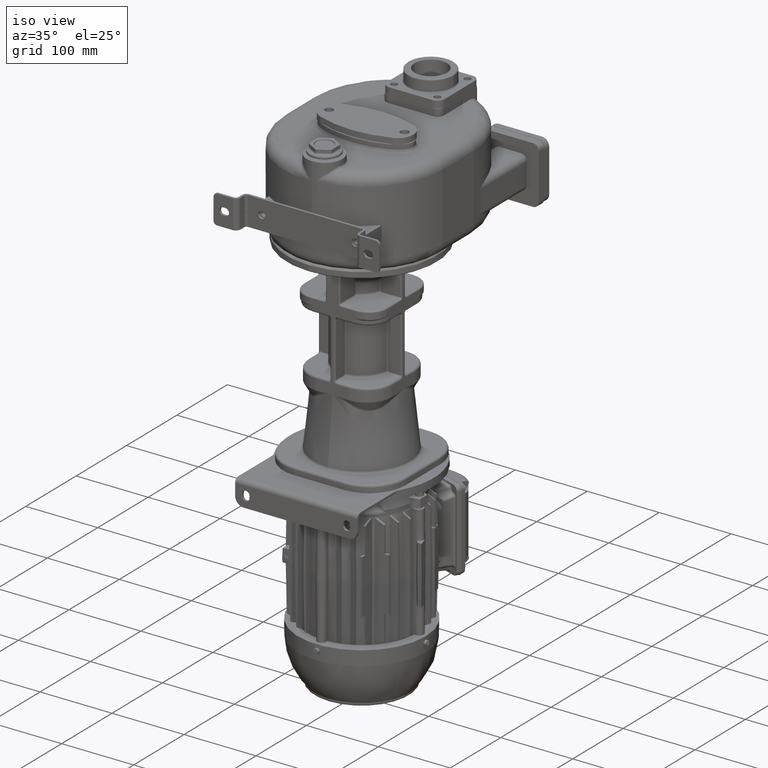
[diagram: clean part render]
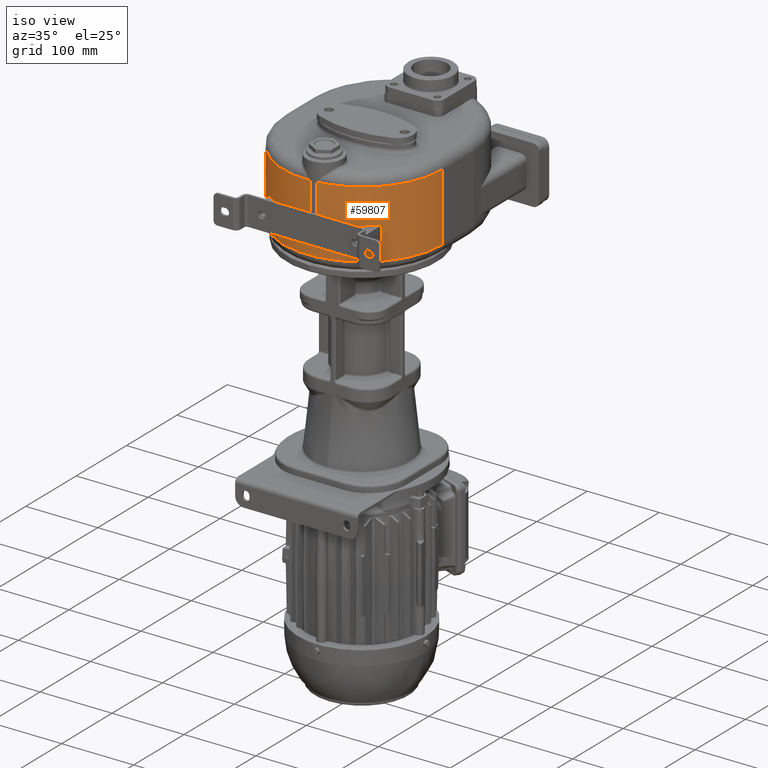
[diagram: tour spotlight — one face highlighted and labeled with its STEP entity id]
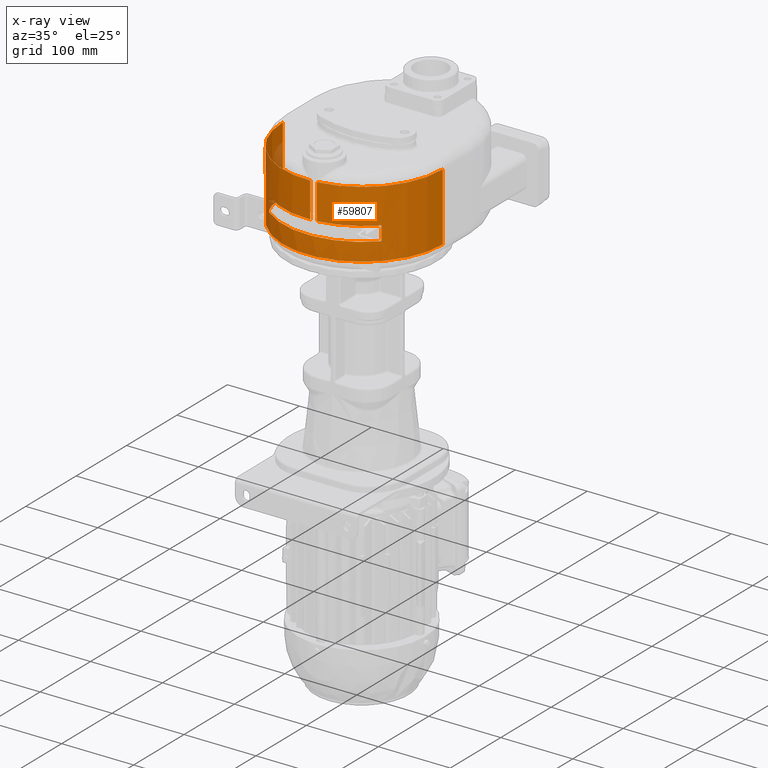
[diagram: x-ray of the same camera — body ghosted, this tour face saturated]
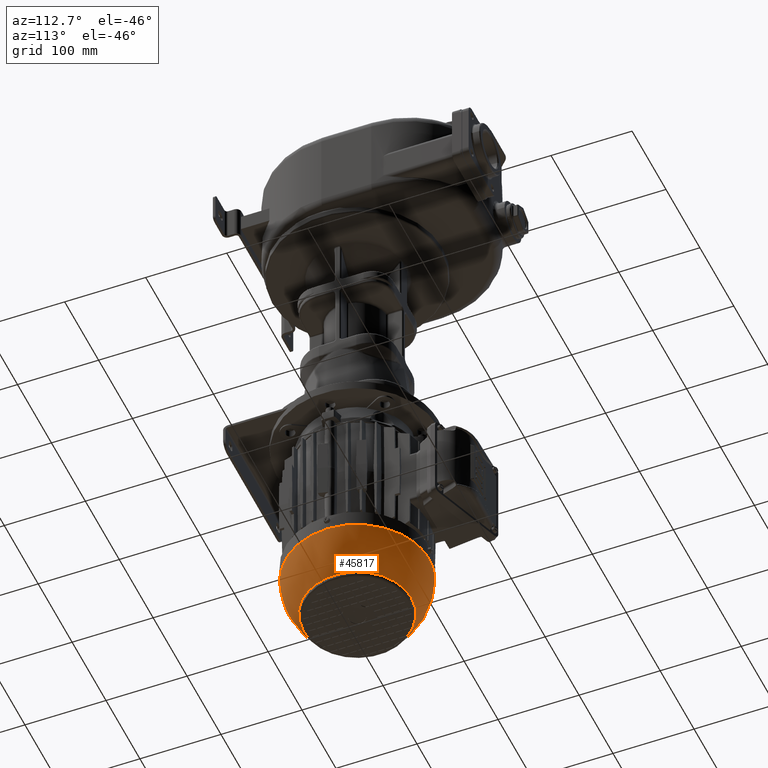
[diagram: tour spotlight — one face highlighted and labeled with its STEP entity id]
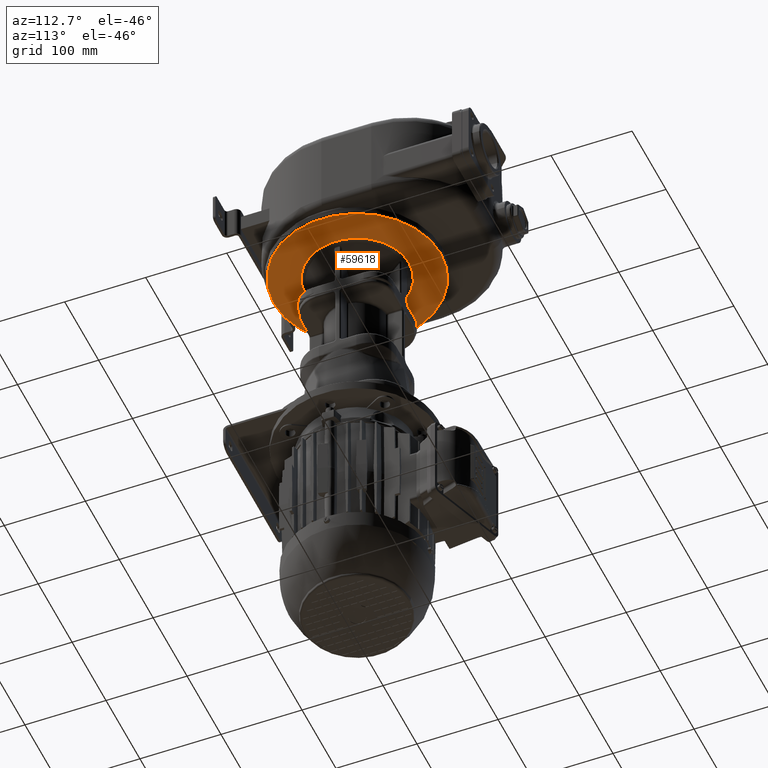
[diagram: tour spotlight — one face highlighted and labeled with its STEP entity id]
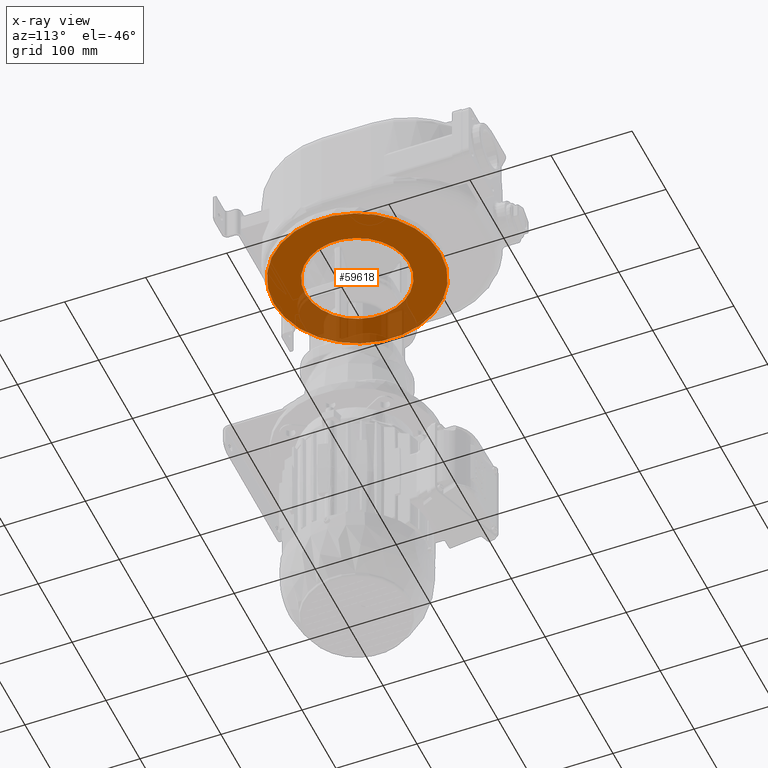
[diagram: x-ray of the same camera — body ghosted, this tour face saturated]
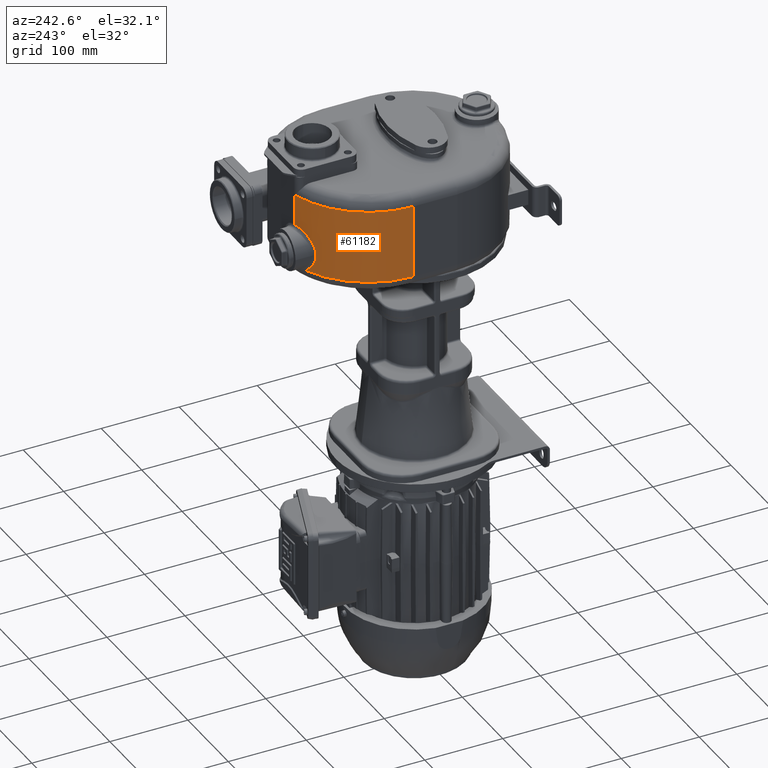
[diagram: tour spotlight — one face highlighted and labeled with its STEP entity id]
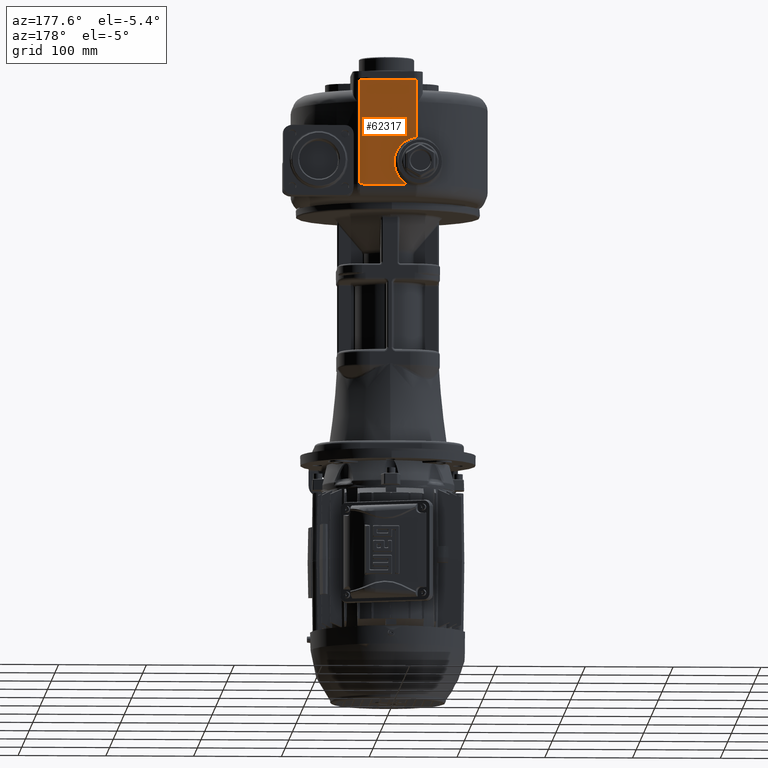
[diagram: tour spotlight — one face highlighted and labeled with its STEP entity id]
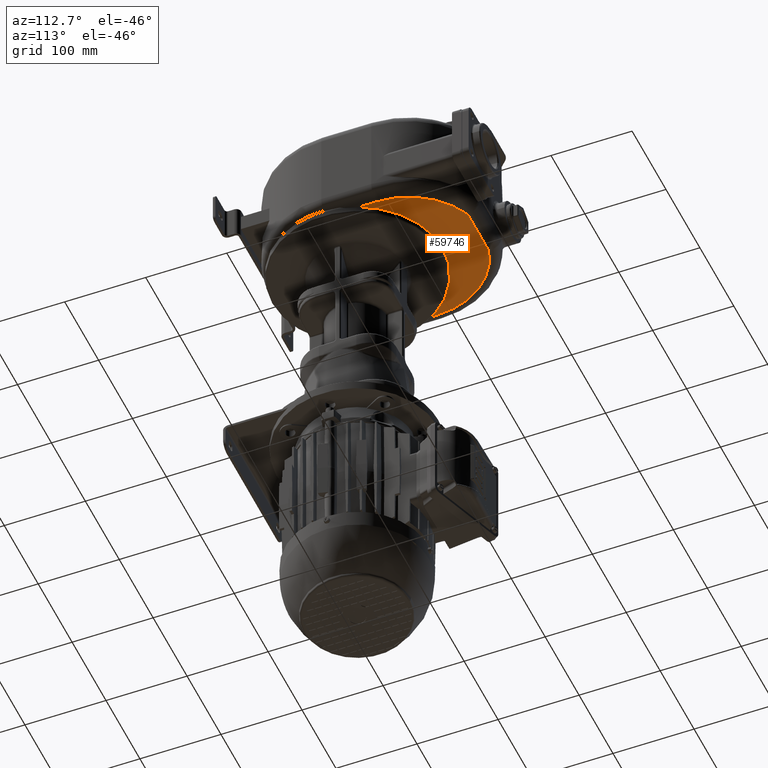
[diagram: tour spotlight — one face highlighted and labeled with its STEP entity id]
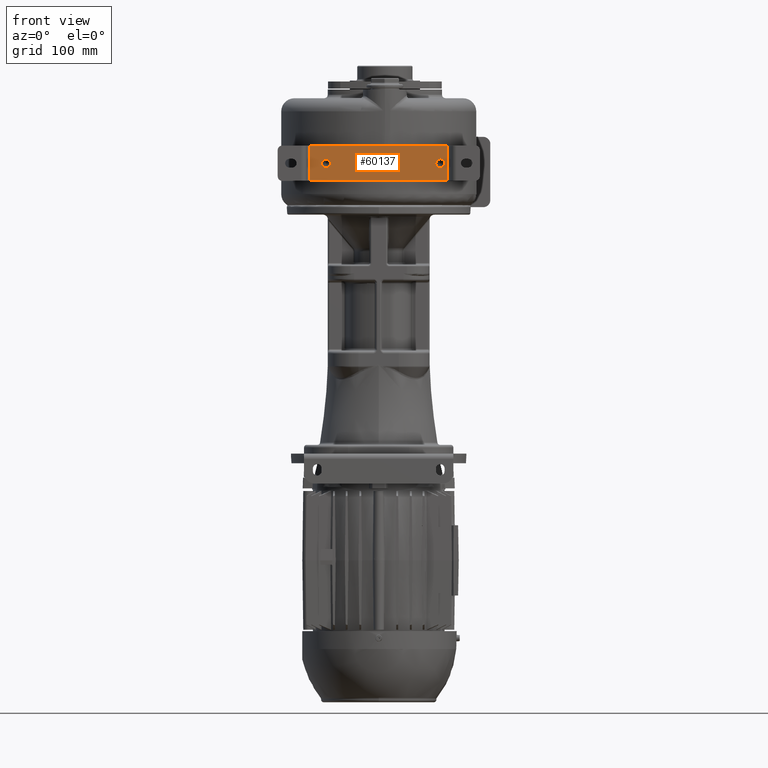
[diagram: tour spotlight — one face highlighted and labeled with its STEP entity id]
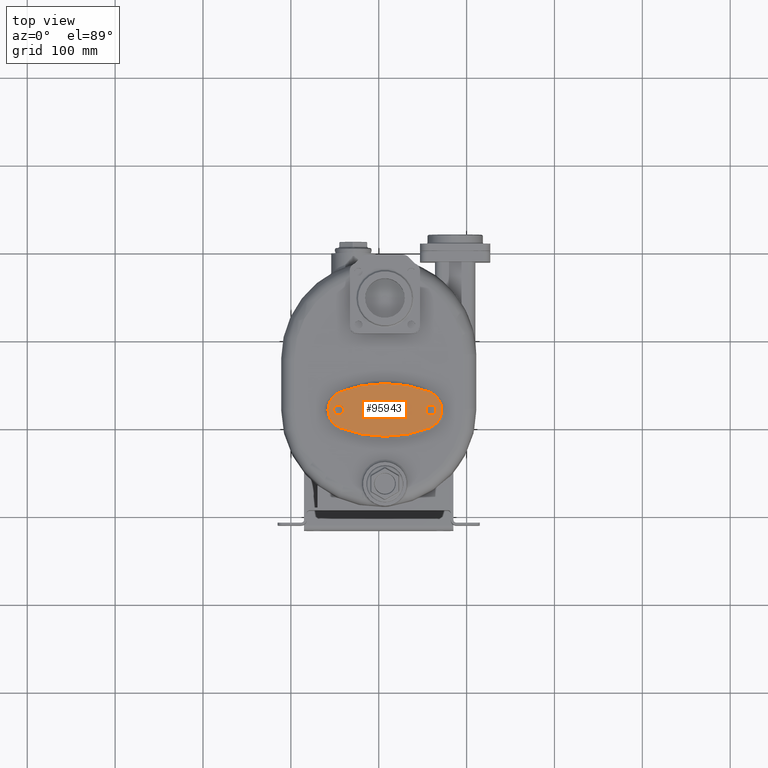
[diagram: tour spotlight — one face highlighted and labeled with its STEP entity id]
A machine part: a face-by-face anatomy tour. The part has 2327 B-rep faces; the first image is the clean iso view, then the 8 largest visible faces are spotlighted one at a time (largest first), each with its STEP entity span.

Face 1 — iso view, entity #59807. An x-ray twin of the same camera follows (body ghosted, this face saturated) — the face is partly hidden behind the body. In plain terms, the highlighted cylindrical surface (partial cylindrical patch) has radius 111 mm, axis along (0, 0, -1).
Definition (entity closure, byte-faithful):
#11781=DIRECTION('',(1.653481886557E-10,-1.355777005402E-9,-1.E0));
#11782=VECTOR('',#11781,4.9E1);
#11783=CARTESIAN_POINT('',(1.343747532038E1,1.816361277381E0,5.9E1));
#11784=LINE('',#11783,#11782);
#11785=CARTESIAN_POINT('',(0.E0,1.12E2,5.9E1));
#11786=DIRECTION('',(0.E0,0.E0,1.E0));
#11787=DIRECTION('',(1.210583362927E-1,-9.926453944960E-1,0.E0));
#11788=AXIS2_PLACEMENT_3D('',#11785,#11786,#11787);
#11790=DIRECTION('',(0.E0,-7.770616301717E-14,1.E0));
#11791=VECTOR('',#11790,9.4E1);
#11792=CARTESIAN_POINT('',(1.11E2,1.12E2,-3.5E1));
#11793=LINE('',#11792,#11791);
#11794=CARTESIAN_POINT('',(0.E0,1.12E2,-3.5E1));
#11795=DIRECTION('',(0.E0,0.E0,-1.E0));
#11796=DIRECTION('',(1.E0,0.E0,0.E0));
#11797=AXIS2_PLACEMENT_3D('',#11794,#11795,#11796);
#11799=CARTESIAN_POINT('',(0.E0,1.12E2,5.9E1));
#11800=DIRECTION('',(0.E0,0.E0,1.E0));
#11801=DIRECTION('',(-1.E0,0.E0,0.E0));
#11802=AXIS2_PLACEMENT_3D('',#11799,#11800,#11801);
#11804=DIRECTION('',(-1.245607865459E-8,3.053099366990E-7,1.E0));
#11805=VECTOR('',#11804,4.899999999683E1);
#11806=CARTESIAN_POINT('',(4.558222950119E0,1.093631366197E0,1.E1));
#11807=LINE('',#11806,#11805);
#11808=CARTESIAN_POINT('',(0.E0,1.12E2,1.E1));
#11809=DIRECTION('',(0.E0,0.E0,-1.E0));
#11810=DIRECTION('',(4.106507162270E-2,-9.991564741784E-1,0.E0));
#11811=AXIS2_PLACEMENT_3D('',#11808,#11809,#11810);
#11813=DIRECTION('',(0.E0,0.E0,-1.E0));
#11814=VECTOR('',#11813,2.E1);
#11815=CARTESIAN_POINT('',(-7.E1,2.585477378287E1,1.E1));
#11816=LINE('',#11815,#11814);
#11817=CARTESIAN_POINT('',(0.E0,1.12E2,-1.E1));
#11818=DIRECTION('',(0.E0,0.E0,-1.E0));
#11819=DIRECTION('',(7.207207207207E-1,-6.932255352508E-1,0.E0));
#11820=AXIS2_PLACEMENT_3D('',#11817,#11818,#11819);
#11822=DIRECTION('',(0.E0,0.E0,-1.E0));
#11823=VECTOR('',#11822,2.E1);
#11824=CARTESIAN_POINT('',(8.E1,3.505196558716E1,1.E1));
#11825=LINE('',#11824,#11823);
#11826=CARTESIAN_POINT('',(0.E0,1.12E2,1.E1));
#11827=DIRECTION('',(0.E0,0.E0,-1.E0));
#11828=DIRECTION('',(7.207207207207E-1,-6.932255352508E-1,0.E0));
#11829=AXIS2_PLACEMENT_3D('',#11826,#11827,#11828);
#12901=CARTESIAN_POINT('',(4.558222339772E0,1.093646326384E0,5.899999999683E1));
#12979=DIRECTION('',(0.E0,1.454344918726E-13,1.E0));
#12980=VECTOR('',#12979,9.4E1);
#12981=CARTESIAN_POINT('',(-1.11E2,1.12E2,-3.5E1));
#12982=LINE('',#12981,#12980);
#15438=CARTESIAN_POINT('',(1.343747532038E1,1.816361277381E0,5.9E1));
#38249=CARTESIAN_POINT('',(8.E1,3.505196558716E1,-1.E1));
#38250=VERTEX_POINT('',#38249);
#38251=CARTESIAN_POINT('',(8.E1,3.505196558716E1,1.E1));
#38252=VERTEX_POINT('',#38251);
#38333=CARTESIAN_POINT('',(-7.E1,2.585477378287E1,1.E1));
#38334=CARTESIAN_POINT('',(-7.E1,2.585477378287E1,-1.E1));
#38335=VERTEX_POINT('',#38333);
#38336=VERTEX_POINT('',#38334);
#38347=CARTESIAN_POINT('',(1.11E2,1.12E2,5.9E1));
#38348=VERTEX_POINT('',#38347);
#38354=CARTESIAN_POINT('',(-1.11E2,1.12E2,5.9E1));
#38356=VERTEX_POINT('',#38354);
#38377=CARTESIAN_POINT('',(1.11E2,1.12E2,-3.5E1));
#38378=VERTEX_POINT('',#38377);
#38379=CARTESIAN_POINT('',(-1.11E2,1.12E2,-3.5E1));
#38380=VERTEX_POINT('',#38379);
#38404=VERTEX_POINT('',#15438);
#38407=VERTEX_POINT('',#12901);
#38431=CARTESIAN_POINT('',(1.343747532849E1,1.816361210948E0,1.E1));
#38432=VERTEX_POINT('',#38431);
#38437=CARTESIAN_POINT('',(4.558222950120E0,1.093631366197E0,1.E1));
#38438=VERTEX_POINT('',#38437);
#59777=CARTESIAN_POINT('',(0.E0,1.12E2,-5.E1));
#59778=DIRECTION('',(0.E0,0.E0,-1.E0));
#59779=DIRECTION('',(-1.E0,0.E0,0.E0));
#59780=AXIS2_PLACEMENT_3D('',#59777,#59778,#59779);
#59781=CYLINDRICAL_SURFACE('',#59780,1.11E2);
#59783=ORIENTED_EDGE('',*,*,#59782,.F.);
#59785=ORIENTED_EDGE('',*,*,#59784,.T.);
#59787=ORIENTED_EDGE('',*,*,#59786,.F.);
#59788=ORIENTED_EDGE('',*,*,#59771,.T.);
#59790=ORIENTED_EDGE('',*,*,#59789,.T.);
#59792=ORIENTED_EDGE('',*,*,#59791,.T.);
#59794=ORIENTED_EDGE('',*,*,#59793,.F.);
#59796=ORIENTED_EDGE('',*,*,#59795,.T.);
#59798=ORIENTED_EDGE('',*,*,#59797,.T.);
#59800=ORIENTED_EDGE('',*,*,#59799,.F.);
#59802=ORIENTED_EDGE('',*,*,#59801,.F.);
#59804=ORIENTED_EDGE('',*,*,#59803,.T.);
#59805=EDGE_LOOP('',(#59783,#59785,#59787,#59788,#59790,#59792,#59794,#59796,
#59798,#59800,#59802,#59804));
#59806=FACE_OUTER_BOUND('',#59805,.F.);
#59807=ADVANCED_FACE('',(#59806),#59781,.T.);
#11789=CIRCLE('',#11788,1.11E2);
#11798=CIRCLE('',#11797,1.11E2);
#11803=CIRCLE('',#11802,1.11E2);
#11812=CIRCLE('',#11811,1.11E2);
#11821=CIRCLE('',#11820,1.11E2);
#11830=CIRCLE('',#11829,1.11E2);
#59771=EDGE_CURVE('',#38378,#38380,#11798,.T.);
#59782=EDGE_CURVE('',#38404,#38432,#11784,.T.);
#59784=EDGE_CURVE('',#38404,#38348,#11789,.T.);
#59786=EDGE_CURVE('',#38378,#38348,#11793,.T.);
#59789=EDGE_CURVE('',#38380,#38356,#12982,.T.);
#59791=EDGE_CURVE('',#38356,#38407,#11803,.T.);
#59793=EDGE_CURVE('',#38438,#38407,#11807,.T.);
#59795=EDGE_CURVE('',#38438,#38335,#11812,.T.);
#59797=EDGE_CURVE('',#38335,#38336,#11816,.T.);
#59799=EDGE_CURVE('',#38250,#38336,#11821,.T.);
#59801=EDGE_CURVE('',#38252,#38250,#11825,.T.);
#59803=EDGE_CURVE('',#38252,#38432,#11830,.T.);

Face 2 — auxiliary view, entity #45817. In plain terms, the highlighted spherical surface has radius 88.2484 mm.
Definition (entity closure, byte-faithful):
#1827=CARTESIAN_POINT('',(-3.084348699154E-14,1.1E2,-5.528100738710E2));
#1828=DIRECTION('',(0.E0,0.E0,1.E0));
#1829=DIRECTION('',(-9.861914828993E-1,-1.656090548758E-1,0.E0));
#1830=AXIS2_PLACEMENT_3D('',#1827,#1828,#1829);
#1832=CARTESIAN_POINT('',(-8.7E1,1.1E2,-5.505E2));
#1833=DIRECTION('',(-1.E0,0.E0,-1.476638648832E-14));
#1834=DIRECTION('',(0.E0,9.877288322428E-1,-1.561785963450E-1));
#1835=AXIS2_PLACEMENT_3D('',#1832,#1833,#1834);
#1837=CARTESIAN_POINT('',(-3.084348699154E-14,1.1E2,-6.081461572087E2));
#1838=DIRECTION('',(0.E0,0.E0,-1.E0));
#1839=DIRECTION('',(0.E0,-1.E0,0.E0));
#1840=AXIS2_PLACEMENT_3D('',#1837,#1838,#1839);
#1842=CARTESIAN_POINT('',(-3.084348699154E-14,1.1E2,-6.081461572087E2));
#1843=DIRECTION('',(0.E0,0.E0,-1.E0));
#1844=DIRECTION('',(0.E0,1.E0,0.E0));
#1845=AXIS2_PLACEMENT_3D('',#1842,#1843,#1844);
#2278=CARTESIAN_POINT('',(-8.7E1,9.539027356854E1,-5.528100738711E2));
#2290=CARTESIAN_POINT('',(-8.7E1,1.246097264315E2,-5.528100738711E2));
#40978=VERTEX_POINT('',#2278);
#41043=VERTEX_POINT('',#2290);
#42678=CARTESIAN_POINT('',(-1.021108169298E-13,1.768184189185E2,
-6.081461572087E2));
#42680=VERTEX_POINT('',#42678);
#42738=CARTESIAN_POINT('',(-1.443271405111E-13,4.318158108155E1,
-6.081461572087E2));
#42739=VERTEX_POINT('',#42738);
#45802=CARTESIAN_POINT('',(-3.084348699154E-14,1.1E2,-5.505E2));
#45803=DIRECTION('',(0.E0,-1.E0,0.E0));
#45804=DIRECTION('',(1.E0,0.E0,1.476638648832E-14));
#45805=AXIS2_PLACEMENT_3D('',#45802,#45803,#45804);
#45806=SPHERICAL_SURFACE('',#45805,8.824840252204E1);
#45808=ORIENTED_EDGE('',*,*,#45807,.T.);
#45810=ORIENTED_EDGE('',*,*,#45809,.T.);
#45811=EDGE_LOOP('',(#45808,#45810));
#45812=FACE_OUTER_BOUND('',#45811,.F.);
#45813=ORIENTED_EDGE('',*,*,#45782,.T.);
#45814=ORIENTED_EDGE('',*,*,#45795,.T.);
#45815=EDGE_LOOP('',(#45813,#45814));
#45816=FACE_BOUND('',#45815,.F.);
#45817=ADVANCED_FACE('',(#45812,#45816),#45806,.T.);
#1831=CIRCLE('',#1830,8.821816199855E1);
#1836=CIRCLE('',#1835,1.479123212216E1);
#1841=CIRCLE('',#1840,6.681841891845E1);
#1846=CIRCLE('',#1845,6.681841891845E1);
#45782=EDGE_CURVE('',#42739,#42680,#1841,.T.);
#45795=EDGE_CURVE('',#42680,#42739,#1846,.T.);
#45807=EDGE_CURVE('',#40978,#41043,#1831,.T.);
#45809=EDGE_CURVE('',#41043,#40978,#1836,.T.);

Face 3 — auxiliary view, entity #59618. An x-ray twin of the same camera follows (body ghosted, this face saturated) — the face is partly hidden behind the body. In plain terms, the highlighted planar face has unit normal (0, 0, -1).
Definition (entity closure, byte-faithful):
#11462=CARTESIAN_POINT('',(0.E0,1.1E2,-5.85E1));
#11463=DIRECTION('',(0.E0,0.E0,1.E0));
#11464=DIRECTION('',(0.E0,1.E0,0.E0));
#11465=AXIS2_PLACEMENT_3D('',#11462,#11463,#11464);
#11467=CARTESIAN_POINT('',(0.E0,1.1E2,-5.85E1));
#11468=DIRECTION('',(0.E0,0.E0,1.E0));
#11469=DIRECTION('',(0.E0,-1.E0,0.E0));
#11470=AXIS2_PLACEMENT_3D('',#11467,#11468,#11469);
#11472=CARTESIAN_POINT('',(0.E0,1.1E2,-5.85E1));
#11473=DIRECTION('',(0.E0,0.E0,-1.E0));
#11474=DIRECTION('',(0.E0,-1.E0,0.E0));
#11475=AXIS2_PLACEMENT_3D('',#11472,#11473,#11474);
#11477=CARTESIAN_POINT('',(0.E0,1.1E2,-5.85E1));
#11478=DIRECTION('',(0.E0,0.E0,-1.E0));
#11479=DIRECTION('',(0.E0,1.E0,0.E0));
#11480=AXIS2_PLACEMENT_3D('',#11477,#11478,#11479);
#38447=CARTESIAN_POINT('',(0.E0,4.598899167936E1,-5.85E1));
#38448=CARTESIAN_POINT('',(0.E0,1.740110083206E2,-5.85E1));
#38449=VERTEX_POINT('',#38447);
#38450=VERTEX_POINT('',#38448);
#38475=CARTESIAN_POINT('',(3.744776952475E-14,2.13E2,-5.85E1));
#38476=CARTESIAN_POINT('',(-5.682942365573E-14,7.E0,-5.85E1));
#38477=VERTEX_POINT('',#38475);
#38478=VERTEX_POINT('',#38476);
#59602=CARTESIAN_POINT('',(0.E0,1.1E2,-5.85E1));
#59603=DIRECTION('',(0.E0,0.E0,-1.E0));
#59604=DIRECTION('',(0.E0,1.E0,0.E0));
#59605=AXIS2_PLACEMENT_3D('',#59602,#59603,#59604);
#59606=PLANE('',#59605);
#59608=ORIENTED_EDGE('',*,*,#59607,.T.);
#59610=ORIENTED_EDGE('',*,*,#59609,.T.);
#59611=EDGE_LOOP('',(#59608,#59610));
#59612=FACE_OUTER_BOUND('',#59611,.F.);
#59614=ORIENTED_EDGE('',*,*,#59613,.T.);
#59615=ORIENTED_EDGE('',*,*,#59592,.T.);
#59616=EDGE_LOOP('',(#59614,#59615));
#59617=FACE_BOUND('',#59616,.F.);
#59618=ADVANCED_FACE('',(#59612,#59617),#59606,.T.);
#11466=CIRCLE('',#11465,1.03E2);
#11471=CIRCLE('',#11470,1.03E2);
#11476=CIRCLE('',#11475,6.401100832064E1);
#11481=CIRCLE('',#11480,6.401100832064E1);
#59592=EDGE_CURVE('',#38450,#38449,#11481,.T.);
#59607=EDGE_CURVE('',#38477,#38478,#11466,.T.);
#59609=EDGE_CURVE('',#38478,#38477,#11471,.T.);
#59613=EDGE_CURVE('',#38449,#38450,#11476,.T.);

Face 4 — auxiliary view, entity #61182. In plain terms, the highlighted cylindrical surface (partial cylindrical patch) has radius 111 mm, axis along (0, 0, -1).
Definition (entity closure, byte-faithful):
#12983=CARTESIAN_POINT('',(-5.598262203680E1,2.649286204479E2,
-1.000000000284E1));
#12984=CARTESIAN_POINT('',(-5.598257417062E1,2.649286647669E2,
-9.713638214482E0));
#12985=CARTESIAN_POINT('',(-5.597408268953E1,2.649335562957E2,
-9.141487370924E0));
#12986=CARTESIAN_POINT('',(-5.593732685356E1,2.649550423786E2,
-8.284988627281E0));
#12987=CARTESIAN_POINT('',(-5.587625271090E1,2.649906489092E2,
-7.430188306869E0));
#12988=CARTESIAN_POINT('',(-5.579092208791E1,2.650403222006E2,
-6.577077696168E0));
#12989=CARTESIAN_POINT('',(-5.568108903097E1,2.651041066739E2,
-5.725685272007E0));
#12990=CARTESIAN_POINT('',(-5.554641010945E1,2.651820918917E2,
-4.876061583062E0));
#12991=CARTESIAN_POINT('',(-5.538682189137E1,2.652741745605E2,
-4.028112592355E0));
#12992=CARTESIAN_POINT('',(-5.520215468499E1,2.653802880721E2,
-3.181941395216E0));
#12993=CARTESIAN_POINT('',(-5.499210328162E1,2.655004161141E2,
-2.337584417320E0));
#12994=CARTESIAN_POINT('',(-5.475640849650E1,2.656344876723E2,
-1.495711142670E0));
#12995=CARTESIAN_POINT('',(-5.449490049273E1,2.657823528743E2,
-6.575120318254E-1));
#12996=CARTESIAN_POINT('',(-5.420746308680E1,2.659438044832E2,
1.758164510485E-1));
#12997=CARTESIAN_POINT('',(-5.389392711569E1,2.661186383736E2,
1.003923659341E0));
#12998=CARTESIAN_POINT('',(-5.355394319492E1,2.663067227143E2,
1.826620260440E0));
#12999=CARTESIAN_POINT('',(-5.318708492140E1,2.665079362791E2,
2.643625309546E0));
#13000=CARTESIAN_POINT('',(-5.279344524677E1,2.667218439738E2,
3.453393776946E0));
#13001=CARTESIAN_POINT('',(-5.237327594971E1,2.669479043984E2,
4.254192848392E0));
#13002=CARTESIAN_POINT('',(-5.192680423176E1,2.671855727757E2,
5.044625647777E0));
#13003=CARTESIAN_POINT('',(-5.145383498605E1,2.674345095490E2,
5.824226832044E0));
#13004=CARTESIAN_POINT('',(-5.095412781684E1,2.676943715816E2,
6.592457207828E0));
#13005=CARTESIAN_POINT('',(-5.042803192328E1,2.679644879518E2,
7.347870440329E0));
#13006=CARTESIAN_POINT('',(-4.987620039723E1,2.682440259471E2,
8.088770669851E0));
#13007=CARTESIAN_POINT('',(-4.929924098636E1,2.685321764941E2,
8.813698153975E0));
#13008=CARTESIAN_POINT('',(-4.869769911947E1,2.688281623403E2,
9.521398674899E0));
#13009=CARTESIAN_POINT('',(-4.807227579250E1,2.691311329607E2,
1.021057533234E1));
#13010=CARTESIAN_POINT('',(-4.742387703486E1,2.694401498877E2,
1.087986495247E1));
#13011=CARTESIAN_POINT('',(-4.675345218701E1,2.697542725189E2,
1.152802157526E1));
#13012=CARTESIAN_POINT('',(-4.606190721153E1,2.700726010854E2,
1.215393627883E1));
#13013=CARTESIAN_POINT('',(-4.535024456147E1,2.703942142508E2,
1.275655413933E1));
#13014=CARTESIAN_POINT('',(-4.461953977382E1,2.707181857207E2,
1.333489586147E1));
#13015=CARTESIAN_POINT('',(-4.387092661249E1,2.710435955085E2,
1.388804732297E1));
#13016=CARTESIAN_POINT('',(-4.310558230540E1,2.713695402679E2,
1.441515425660E1));
#13017=CARTESIAN_POINT('',(-4.232475998413E1,2.716951233269E2,
1.491544219695E1));
#13018=CARTESIAN_POINT('',(-4.152973419289E1,2.720194817131E2,
1.538824584772E1));
#13019=CARTESIAN_POINT('',(-4.072172935308E1,2.723418158976E2,
1.583301215539E1));
#13020=CARTESIAN_POINT('',(-3.990204352328E1,2.726613407977E2,
1.624924428512E1));
#13021=CARTESIAN_POINT('',(-3.907191455322E1,2.729773407345E2,
1.663657745380E1));
#13022=CARTESIAN_POINT('',(-3.823245081764E1,2.732891916425E2,
1.699477262799E1));
#13023=CARTESIAN_POINT('',(-3.738480390938E1,2.735962936836E2,
1.732362125982E1));
#13024=CARTESIAN_POINT('',(-3.653009956730E1,2.738980979022E2,
1.762298904282E1));
#13025=CARTESIAN_POINT('',(-3.566943956200E1,2.741941037854E2,
1.789281253452E1));
#13026=CARTESIAN_POINT('',(-3.480396714851E1,2.744838369494E2,
1.813305198609E1));
#13027=CARTESIAN_POINT('',(-3.393464514068E1,2.747669224519E2,
1.834375996571E1));
#13028=CARTESIAN_POINT('',(-3.306221161823E1,2.750430888083E2,
1.852509570653E1));
#13029=CARTESIAN_POINT('',(-3.218741292529E1,2.753120873228E2,
1.867719591154E1));
#13030=CARTESIAN_POINT('',(-3.131101911410E1,2.755736866345E2,
1.880016881364E1));
#13031=CARTESIAN_POINT('',(-3.043414019190E1,2.758275860938E2,
1.889414814212E1));
#13032=CARTESIAN_POINT('',(-2.955753018114E1,2.760736188103E2,
1.895932142998E1));
#13033=CARTESIAN_POINT('',(-2.868308521584E1,2.763113369169E2,
1.899585287417E1));
#13034=CARTESIAN_POINT('',(-2.780996174513E1,2.765410882407E2,
1.900404751910E1));
#13035=CARTESIAN_POINT('',(-2.723076278787E1,2.766884365510E2,
1.899083711178E1));
#13036=CARTESIAN_POINT('',(-2.694174163334E1,2.767607504883E2,
1.897960675593E1));
#13038=CARTESIAN_POINT('',(0.E0,1.690800320256E2,5.9E1));
#13039=DIRECTION('',(0.E0,0.E0,1.E0));
#13040=DIRECTION('',(-2.427184466019E-1,9.700967764502E-1,0.E0));
#13041=AXIS2_PLACEMENT_3D('',#13038,#13039,#13040);
#13043=DIRECTION('',(0.E0,0.E0,1.E0));
#13044=VECTOR('',#13043,9.4E1);
#13045=CARTESIAN_POINT('',(-1.11E2,1.690800320256E2,-3.5E1));
#13046=LINE('',#13045,#13044);
#13047=CARTESIAN_POINT('',(0.E0,1.690800320256E2,-3.5E1));
#13048=DIRECTION('',(0.E0,0.E0,-1.E0));
#13049=DIRECTION('',(-1.E0,0.E0,0.E0));
#13050=AXIS2_PLACEMENT_3D('',#13047,#13048,#13049);
#13052=CARTESIAN_POINT('',(-4.217704383360E1,2.717547432452E2,
-3.500000000002E1));
#13053=CARTESIAN_POINT('',(-4.244243056729E1,2.716457262942E2,
-3.483836102989E1));
#13054=CARTESIAN_POINT('',(-4.296802176009E1,2.714274241254E2,
-3.450603308868E1));
#13055=CARTESIAN_POINT('',(-4.374154514417E1,2.710991886525E2,
-3.397990138956E1));
#13056=CARTESIAN_POINT('',(-4.449825346300E1,2.707713670428E2,
-3.342725002542E1));
#13057=CARTESIAN_POINT('',(-4.523705370293E1,2.704448269079E2,
-3.284884311812E1));
#13058=CARTESIAN_POINT('',(-4.595672679939E1,2.701205283497E2,
-3.224565022041E1));
#13059=CARTESIAN_POINT('',(-4.665617515718E1,2.697994118947E2,
-3.161868592169E1));
#13060=CARTESIAN_POINT('',(-4.733429999459E1,2.694824490600E2,
-3.096905727310E1));
#13061=CARTESIAN_POINT('',(-4.799007972413E1,2.691706030271E2,
-3.029796937256E1));
#13062=CARTESIAN_POINT('',(-4.862256518666E1,2.688648252927E2,
-2.960669894691E1));
#13063=CARTESIAN_POINT('',(-4.923091588531E1,2.685660326255E2,
-2.889654361066E1));
#13064=CARTESIAN_POINT('',(-4.981441815927E1,2.682750910259E2,
-2.816882297155E1));
#13065=CARTESIAN_POINT('',(-5.037241612812E1,2.679928440303E2,
-2.742492509636E1));
#13066=CARTESIAN_POINT('',(-5.090440854711E1,2.677200583245E2,
-2.666616606410E1));
#13067=CARTESIAN_POINT('',(-5.140998264256E1,2.674574505256E2,
-2.589387082169E1));
#13068=CARTESIAN_POINT('',(-5.188880628836E1,2.672056868069E2,
-2.510938625853E1));
#13069=CARTESIAN_POINT('',(-5.234071248982E1,2.669653330498E2,
-2.431390337687E1));
#13070=CARTESIAN_POINT('',(-5.276556624298E1,2.667369203088E2,
-2.350861113587E1));
#13071=CARTESIAN_POINT('',(-5.316333125153E1,2.665209065777E2,
-2.269465485797E1));
#13072=CARTESIAN_POINT('',(-5.353410096266E1,2.663176556216E2,
-2.187301388030E1));
#13073=CARTESIAN_POINT('',(-5.387795931052E1,2.661275104524E2,
-2.104461542083E1));
#13074=CARTESIAN_POINT('',(-5.419502256797E1,2.659507699036E2,
-2.021040289333E1));
#13075=CARTESIAN_POINT('',(-5.448544845689E1,2.657876821220E2,
-1.937134859697E1));
#13076=CARTESIAN_POINT('',(-5.474935140885E1,2.656384918682E2,
-1.852842062134E1));
#13077=CARTESIAN_POINT('',(-5.498704595396E1,2.655033022429E2,
-1.768213587378E1));
#13078=CARTESIAN_POINT('',(-5.519891613094E1,2.653821460278E2,
-1.683280439762E1));
#13079=CARTESIAN_POINT('',(-5.538522961288E1,2.652750925238E2,
-1.598060456052E1));
#13080=CARTESIAN_POINT('',(-5.554608997184E1,2.651822776472E2,
-1.512606252337E1));
#13081=CARTESIAN_POINT('',(-5.568168128504E1,2.651037637103E2,
-1.427014597299E1));
#13082=CARTESIAN_POINT('',(-5.579216989029E1,2.650395968433E2,
-1.341369747314E1));
#13083=CARTESIAN_POINT('',(-5.587765590960E1,2.649898316250E2,
-1.255752811876E1));
#13084=CARTESIAN_POINT('',(-5.593830639055E1,2.649544696850E2,
-1.170248105299E1));
#13085=CARTESIAN_POINT('',(-5.597443590486E1,2.649333538707E2,
-1.084941603185E1));
#13086=CARTESIAN_POINT('',(-5.598259945360E1,2.649286415901E2,
-1.028282934874E1));
#13087=CARTESIAN_POINT('',(-5.598262203680E1,2.649286204479E2,
-1.000000000284E1));
#13122=CARTESIAN_POINT('',(-4.217704383360E1,2.717547432452E2,
-3.500000000002E1));
#13973=DIRECTION('',(1.484112030432E-7,-5.927798486990E-7,-9.999999999998E-1));
#13974=VECTOR('',#13973,4.002039324408E1);
#13975=CARTESIAN_POINT('',(-2.694174757282E1,2.767607742116E2,5.9E1));
#13976=LINE('',#13975,#13974);
#13977=CARTESIAN_POINT('',(-2.694174163334E1,2.767607504883E2,
1.897960675593E1));
#38353=CARTESIAN_POINT('',(-1.11E2,1.690800320256E2,5.9E1));
#38355=VERTEX_POINT('',#38353);
#38359=CARTESIAN_POINT('',(-2.694174757282E1,2.767607742116E2,5.9E1));
#38360=VERTEX_POINT('',#38359);
#38381=CARTESIAN_POINT('',(-1.11E2,1.690800320256E2,-3.5E1));
#38382=VERTEX_POINT('',#38381);
#38417=VERTEX_POINT('',#13977);
#38420=VERTEX_POINT('',#12983);
#38429=VERTEX_POINT('',#13122);
#61164=CARTESIAN_POINT('',(0.E0,1.690800320256E2,-5.E1));
#61165=DIRECTION('',(0.E0,0.E0,-1.E0));
#61166=DIRECTION('',(-1.E0,0.E0,0.E0));
#61167=AXIS2_PLACEMENT_3D('',#61164,#61165,#61166);
#61168=CYLINDRICAL_SURFACE('',#61167,1.11E2);
#61170=ORIENTED_EDGE('',*,*,#61169,.T.);
#61172=ORIENTED_EDGE('',*,*,#61171,.F.);
#61174=ORIENTED_EDGE('',*,*,#61173,.T.);
#61175=ORIENTED_EDGE('',*,*,#61157,.F.);
#61177=ORIENTED_EDGE('',*,*,#61176,.T.);
#61179=ORIENTED_EDGE('',*,*,#61178,.T.);
#61180=EDGE_LOOP('',(#61170,#61172,#61174,#61175,#61177,#61179));
#61181=FACE_OUTER_BOUND('',#61180,.F.);
#61182=ADVANCED_FACE('',(#61181),#61168,.T.);
#13037=B_SPLINE_CURVE_WITH_KNOTS('',3,(#12983,#12984,#12985,#12986,#12987,
#12988,#12989,#12990,#12991,#12992,#12993,#12994,#12995,#12996,#12997,#12998,
#12999,#13000,#13001,#13002,#13003,#13004,#13005,#13006,#13007,#13008,#13009,
#13010,#13011,#13012,#13013,#13014,#13015,#13016,#13017,#13018,#13019,#13020,
#13021,#13022,#13023,#13024,#13025,#13026,#13027,#13028,#13029,#13030,#13031,
#13032,#13033,#13034,#13035,#13036),.UNSPECIFIED.,.F.,.F.,(4,1,1,1,1,1,1,1,1,1,
1,1,1,1,1,1,1,1,1,1,1,1,1,1,1,1,1,1,1,1,1,1,1,1,1,1,1,1,1,1,1,1,1,1,1,1,1,1,1,1,
1,4),(0.E0,1.960784313725E-2,3.921568627451E-2,5.882352941176E-2,
7.843137254902E-2,9.803921568627E-2,1.176470588235E-1,1.372549019608E-1,
1.568627450980E-1,1.764705882353E-1,1.960784313725E-1,2.156862745098E-1,
2.352941176471E-1,2.549019607843E-1,2.745098039216E-1,2.941176470588E-1,
3.137254901961E-1,3.333333333333E-1,3.529411764706E-1,3.725490196078E-1,
3.921568627451E-1,4.117647058824E-1,4.313725490196E-1,4.509803921569E-1,
4.705882352941E-1,4.901960784314E-1,5.098039215686E-1,5.294117647059E-1,
5.490196078431E-1,5.686274509804E-1,5.882352941176E-1,6.078431372549E-1,
6.274509803922E-1,6.470588235294E-1,6.666666666667E-1,6.862745098039E-1,
7.058823529412E-1,7.254901960784E-1,7.450980392157E-1,7.647058823529E-1,
7.843137254902E-1,8.039215686275E-1,8.235294117647E-1,8.431372549020E-1,
8.627450980392E-1,8.823529411765E-1,9.019607843137E-1,9.215686274510E-1,
9.411764705882E-1,9.607843137255E-1,9.803921568627E-1,1.E0),.UNSPECIFIED.);
#13042=CIRCLE('',#13041,1.11E2);
#13051=CIRCLE('',#13050,1.11E2);
#13088=B_SPLINE_CURVE_WITH_KNOTS('',3,(#13052,#13053,#13054,#13055,#13056,
#13057,#13058,#13059,#13060,#13061,#13062,#13063,#13064,#13065,#13066,#13067,
#13068,#13069,#13070,#13071,#13072,#13073,#13074,#13075,#13076,#13077,#13078,
#13079,#13080,#13081,#13082,#13083,#13084,#13085,#13086,#13087),.UNSPECIFIED.,
.F.,.F.,(4,1,1,1,1,1,1,1,1,1,1,1,1,1,1,1,1,1,1,1,1,1,1,1,1,1,1,1,1,1,1,1,1,4),(
0.E0,3.030303030303E-2,6.060606060606E-2,9.090909090909E-2,1.212121212121E-1,
1.515151515152E-1,1.818181818182E-1,2.121212121212E-1,2.424242424242E-1,
2.727272727273E-1,3.030303030303E-1,3.333333333333E-1,3.636363636364E-1,
3.939393939394E-1,4.242424242424E-1,4.545454545455E-1,4.848484848485E-1,
5.151515151515E-1,5.454545454545E-1,5.757575757576E-1,6.060606060606E-1,
6.363636363636E-1,6.666666666667E-1,6.969696969697E-1,7.272727272727E-1,
7.575757575758E-1,7.878787878788E-1,8.181818181818E-1,8.484848484848E-1,
8.787878787879E-1,9.090909090909E-1,9.393939393939E-1,9.696969696970E-1,1.E0),
.UNSPECIFIED.);
#61157=EDGE_CURVE('',#38382,#38355,#13046,.T.);
#61169=EDGE_CURVE('',#38420,#38417,#13037,.T.);
#61171=EDGE_CURVE('',#38360,#38417,#13976,.T.);
#61173=EDGE_CURVE('',#38360,#38355,#13042,.T.);
#61176=EDGE_CURVE('',#38382,#38429,#13051,.T.);
#61178=EDGE_CURVE('',#38429,#38420,#13088,.T.);

Face 5 — auxiliary view, entity #62317. In plain terms, the highlighted planar face has unit normal (0, 1, 0).
Definition (entity closure, byte-faithful):
#13229=CARTESIAN_POINT('',(-1.430306154053E1,2.770000069246E2,
-3.499999999858E1));
#13290=CARTESIAN_POINT('',(3.900003269225E1,2.769999996603E2,
-3.499680775888E1));
#13949=DIRECTION('',(-1.E0,0.E0,0.E0));
#13950=VECTOR('',#13949,6.4E1);
#13951=CARTESIAN_POINT('',(3.9E1,2.77E2,8.4E1));
#13952=LINE('',#13951,#13950);
#13953=DIRECTION('',(1.349828139662E-10,-5.873181931348E-7,-9.999999999998E-1));
#13954=VECTOR('',#13953,6.527718676706E1);
#13955=CARTESIAN_POINT('',(-2.5E1,2.77E2,8.4E1));
#13956=LINE('',#13955,#13954);
#13957=CARTESIAN_POINT('',(-1.430306154053E1,2.770000069246E2,
-3.499999999858E1));
#13958=CARTESIAN_POINT('',(-8.380505623022E0,2.770000069246E2,
-3.499999999858E1));
#13959=CARTESIAN_POINT('',(3.464611720948E0,2.769999935955E2,
-3.499989359128E1));
#13960=CARTESIAN_POINT('',(2.123230304784E1,2.770000120289E2,
-3.500037243265E1));
#13961=CARTESIAN_POINT('',(3.307744327154E1,2.769999762023E2,
-3.499920192962E1));
#13962=CARTESIAN_POINT('',(3.900000606590E1,2.769999762023E2,
-3.499920192962E1));
#13964=DIRECTION('',(5.097433445170E-8,-1.999816982565E-7,-1.E0));
#13965=VECTOR('',#13964,1.189992019296E2);
#13966=CARTESIAN_POINT('',(3.9E1,2.77E2,8.4E1));
#13967=LINE('',#13966,#13965);
#13986=CARTESIAN_POINT('',(-2.499999999119E1,2.769999616615E2,
1.872281323295E1));
#14167=CARTESIAN_POINT('',(-2.9E1,2.77E2,-1.E1));
#14168=DIRECTION('',(0.E0,-1.E0,0.E0));
#14169=DIRECTION('',(5.067909812655E-1,0.E0,-8.620689655172E-1));
#14170=AXIS2_PLACEMENT_3D('',#14167,#14168,#14169);
#38385=VERTEX_POINT('',#13290);
#38418=VERTEX_POINT('',#13986);
#38424=VERTEX_POINT('',#13229);
#38950=CARTESIAN_POINT('',(3.9E1,2.77E2,8.4E1));
#38951=CARTESIAN_POINT('',(-2.5E1,2.77E2,8.4E1));
#38952=VERTEX_POINT('',#38950);
#38953=VERTEX_POINT('',#38951);
#62302=CARTESIAN_POINT('',(4.7E1,2.77E2,8.4E1));
#62303=DIRECTION('',(0.E0,1.E0,0.E0));
#62304=DIRECTION('',(-1.E0,0.E0,0.E0));
#62305=AXIS2_PLACEMENT_3D('',#62302,#62303,#62304);
#62306=PLANE('',#62305);
#62307=ORIENTED_EDGE('',*,*,#62288,.T.);
#62309=ORIENTED_EDGE('',*,*,#62308,.T.);
#62311=ORIENTED_EDGE('',*,*,#62310,.F.);
#62312=ORIENTED_EDGE('',*,*,#61521,.T.);
#62314=ORIENTED_EDGE('',*,*,#62313,.F.);
#62315=EDGE_LOOP('',(#62307,#62309,#62311,#62312,#62314));
#62316=FACE_OUTER_BOUND('',#62315,.F.);
#62317=ADVANCED_FACE('',(#62316),#62306,.T.);
#13963=B_SPLINE_CURVE_WITH_KNOTS('',3,(#13957,#13958,#13959,#13960,#13961,
#13962),.UNSPECIFIED.,.F.,.F.,(4,1,1,4),(0.E0,3.333333333333E-1,
6.666666666667E-1,1.E0),.UNSPECIFIED.);
#14171=CIRCLE('',#14170,2.9E1);
#61521=EDGE_CURVE('',#38424,#38385,#13963,.T.);
#62288=EDGE_CURVE('',#38952,#38953,#13952,.T.);
#62308=EDGE_CURVE('',#38953,#38418,#13956,.T.);
#62310=EDGE_CURVE('',#38424,#38418,#14171,.T.);
#62313=EDGE_CURVE('',#38952,#38385,#13967,.T.);

Face 6 — auxiliary view, entity #59746. In plain terms, the highlighted planar face has unit normal (0, 0, 1).
Definition (entity closure, byte-faithful):
#11705=CARTESIAN_POINT('',(0.E0,1.1E2,-5.E1));
#11706=DIRECTION('',(0.E0,0.E0,1.E0));
#11707=DIRECTION('',(0.E0,1.E0,0.E0));
#11708=AXIS2_PLACEMENT_3D('',#11705,#11706,#11707);
#11710=CARTESIAN_POINT('',(0.E0,1.1E2,-5.E1));
#11711=DIRECTION('',(0.E0,0.E0,1.E0));
#11712=DIRECTION('',(9.142857142857E-1,4.050699108217E-1,0.E0));
#11713=AXIS2_PLACEMENT_3D('',#11710,#11711,#11712);
#11715=DIRECTION('',(0.E0,-1.E0,0.E0));
#11716=VECTOR('',#11715,2.113665706122E1);
#11717=CARTESIAN_POINT('',(9.6E1,1.736689976975E2,-5.E1));
#11718=LINE('',#11717,#11716);
#11719=CARTESIAN_POINT('',(0.E0,1.736689976975E2,-5.E1));
#11720=DIRECTION('',(0.E0,0.E0,-1.E0));
#11721=DIRECTION('',(3.916472586656E-1,9.201154410071E-1,0.E0));
#11722=AXIS2_PLACEMENT_3D('',#11719,#11720,#11721);
#11724=DIRECTION('',(1.E0,1.537028215965E-11,0.E0));
#11725=VECTOR('',#11724,6.172039052466E1);
#11726=CARTESIAN_POINT('',(-2.412212118823E1,2.620000000007E2,-5.E1));
#11727=LINE('',#11726,#11725);
#11728=CARTESIAN_POINT('',(0.E0,1.690800320256E2,-5.E1));
#11729=DIRECTION('',(0.E0,0.E0,-1.E0));
#11730=DIRECTION('',(-1.E0,0.E0,0.E0));
#11731=AXIS2_PLACEMENT_3D('',#11728,#11729,#11730);
#11733=DIRECTION('',(0.E0,1.E0,0.E0));
#11734=VECTOR('',#11733,1.654769138935E1);
#11735=CARTESIAN_POINT('',(-9.6E1,1.525323406363E2,-5.E1));
#11736=LINE('',#11735,#11734);
#38367=CARTESIAN_POINT('',(-2.412212118823E1,2.620000000007E2,-5.E1));
#38368=CARTESIAN_POINT('',(3.759826933642E1,2.620000000016E2,-5.E1));
#38369=VERTEX_POINT('',#38367);
#38370=VERTEX_POINT('',#38368);
#38371=CARTESIAN_POINT('',(9.6E1,1.736689976975E2,-5.E1));
#38372=VERTEX_POINT('',#38371);
#38383=CARTESIAN_POINT('',(-9.6E1,1.690800320256E2,-5.E1));
#38384=VERTEX_POINT('',#38383);
#38439=CARTESIAN_POINT('',(1.815537879735E-14,2.15E2,-5.E1));
#38440=CARTESIAN_POINT('',(-9.6E1,1.525323406363E2,-5.E1));
#38441=VERTEX_POINT('',#38439);
#38442=VERTEX_POINT('',#38440);
#38443=CARTESIAN_POINT('',(9.6E1,1.525323406363E2,-5.E1));
#38444=VERTEX_POINT('',#38443);
#59728=CARTESIAN_POINT('',(0.E0,1.1E2,-5.E1));
#59729=DIRECTION('',(0.E0,0.E0,1.E0));
#59730=DIRECTION('',(-1.E0,0.E0,0.E0));
#59731=AXIS2_PLACEMENT_3D('',#59728,#59729,#59730);
#59732=PLANE('',#59731);
#59733=ORIENTED_EDGE('',*,*,#59644,.F.);
#59734=ORIENTED_EDGE('',*,*,#59662,.F.);
#59736=ORIENTED_EDGE('',*,*,#59735,.F.);
#59738=ORIENTED_EDGE('',*,*,#59737,.F.);
#59740=ORIENTED_EDGE('',*,*,#59739,.F.);
#59742=ORIENTED_EDGE('',*,*,#59741,.F.);
#59743=ORIENTED_EDGE('',*,*,#59717,.F.);
#59744=EDGE_LOOP('',(#59733,#59734,#59736,#59738,#59740,#59742,#59743));
#59745=FACE_OUTER_BOUND('',#59744,.F.);
#59746=ADVANCED_FACE('',(#59745),#59732,.F.);
#11709=CIRCLE('',#11708,1.05E2);
#11714=CIRCLE('',#11713,1.05E2);
#11723=CIRCLE('',#11722,9.6E1);
#11732=CIRCLE('',#11731,9.6E1);
#59644=EDGE_CURVE('',#38441,#38442,#11709,.T.);
#59662=EDGE_CURVE('',#38444,#38441,#11714,.T.);
#59717=EDGE_CURVE('',#38442,#38384,#11736,.T.);
#59735=EDGE_CURVE('',#38372,#38444,#11718,.T.);
#59737=EDGE_CURVE('',#38370,#38372,#11723,.T.);
#59739=EDGE_CURVE('',#38369,#38370,#11727,.T.);
#59741=EDGE_CURVE('',#38384,#38369,#11732,.T.);

Face 7 — front view, entity #60137. In plain terms, the highlighted planar face has unit normal (0, 1, 0).
Definition (entity closure, byte-faithful):
#11934=DIRECTION('',(-1.E0,0.E0,0.E0));
#11935=VECTOR('',#11934,1.574E2);
#11936=CARTESIAN_POINT('',(7.87E1,-3.E0,-2.E1));
#11937=LINE('',#11936,#11935);
#11978=DIRECTION('',(-1.E0,0.E0,0.E0));
#11979=VECTOR('',#11978,1.574E2);
#11980=CARTESIAN_POINT('',(7.87E1,-3.E0,2.E1));
#11981=LINE('',#11980,#11979);
#12032=DIRECTION('',(0.E0,0.E0,1.E0));
#12033=VECTOR('',#12032,4.E1);
#12034=CARTESIAN_POINT('',(7.87E1,-3.E0,-2.E1));
#12035=LINE('',#12034,#12033);
#12036=CARTESIAN_POINT('',(7.E1,-3.E0,0.E0));
#12037=DIRECTION('',(0.E0,1.E0,0.E0));
#12038=DIRECTION('',(0.E0,0.E0,1.E0));
#12039=AXIS2_PLACEMENT_3D('',#12036,#12037,#12038);
#12041=CARTESIAN_POINT('',(7.E1,-3.E0,0.E0));
#12042=DIRECTION('',(0.E0,1.E0,0.E0));
#12043=DIRECTION('',(0.E0,0.E0,-1.E0));
#12044=AXIS2_PLACEMENT_3D('',#12041,#12042,#12043);
#12046=CARTESIAN_POINT('',(-6.E1,-3.E0,0.E0));
#12047=DIRECTION('',(0.E0,1.E0,0.E0));
#12048=DIRECTION('',(0.E0,0.E0,1.E0));
#12049=AXIS2_PLACEMENT_3D('',#12046,#12047,#12048);
#12051=CARTESIAN_POINT('',(-6.E1,-3.E0,0.E0));
#12052=DIRECTION('',(0.E0,1.E0,0.E0));
#12053=DIRECTION('',(0.E0,0.E0,-1.E0));
#12054=AXIS2_PLACEMENT_3D('',#12051,#12052,#12053);
#12056=DIRECTION('',(0.E0,0.E0,1.E0));
#12057=VECTOR('',#12056,4.E1);
#12058=CARTESIAN_POINT('',(-7.87E1,-3.E0,-2.E1));
#12059=LINE('',#12058,#12057);
#44428=CARTESIAN_POINT('',(7.87E1,-3.E0,-2.E1));
#44429=CARTESIAN_POINT('',(-7.87E1,-3.E0,-2.E1));
#44430=VERTEX_POINT('',#44428);
#44431=VERTEX_POINT('',#44429);
#44440=CARTESIAN_POINT('',(7.87E1,-3.E0,2.E1));
#44441=CARTESIAN_POINT('',(-7.87E1,-3.E0,2.E1));
#44442=VERTEX_POINT('',#44440);
#44443=VERTEX_POINT('',#44441);
#44496=CARTESIAN_POINT('',(-6.E1,-3.E0,5.E0));
#44497=CARTESIAN_POINT('',(-6.E1,-3.E0,-5.E0));
#44498=VERTEX_POINT('',#44496);
#44499=VERTEX_POINT('',#44497);
#44500=CARTESIAN_POINT('',(7.E1,-3.E0,5.E0));
#44501=CARTESIAN_POINT('',(7.E1,-3.E0,-5.E0));
#44502=VERTEX_POINT('',#44500);
#44503=VERTEX_POINT('',#44501);
#60113=CARTESIAN_POINT('',(7.87E1,-3.E0,-2.E1));
#60114=DIRECTION('',(0.E0,1.E0,0.E0));
#60115=DIRECTION('',(-1.E0,0.E0,0.E0));
#60116=AXIS2_PLACEMENT_3D('',#60113,#60114,#60115);
#60117=PLANE('',#60116);
#60118=ORIENTED_EDGE('',*,*,#59965,.T.);
#60120=ORIENTED_EDGE('',*,*,#60119,.T.);
#60121=ORIENTED_EDGE('',*,*,#60023,.F.);
#60122=ORIENTED_EDGE('',*,*,#60106,.F.);
#60123=EDGE_LOOP('',(#60118,#60120,#60121,#60122));
#60124=FACE_OUTER_BOUND('',#60123,.F.);
#60126=ORIENTED_EDGE('',*,*,#60125,.F.);
#60128=ORIENTED_EDGE('',*,*,#60127,.F.);
#60129=EDGE_LOOP('',(#60126,#60128));
#60130=FACE_BOUND('',#60129,.F.);
#60132=ORIENTED_EDGE('',*,*,#60131,.F.);
#60134=ORIENTED_EDGE('',*,*,#60133,.F.);
#60135=EDGE_LOOP('',(#60132,#60134));
#60136=FACE_BOUND('',#60135,.F.);
#60137=ADVANCED_FACE('',(#60124,#60130,#60136),#60117,.F.);
#12040=CIRCLE('',#12039,5.E0);
#12045=CIRCLE('',#12044,5.E0);
#12050=CIRCLE('',#12049,5.E0);
#12055=CIRCLE('',#12054,5.E0);
#59965=EDGE_CURVE('',#44430,#44431,#11937,.T.);
#60023=EDGE_CURVE('',#44442,#44443,#11981,.T.);
#60106=EDGE_CURVE('',#44430,#44442,#12035,.T.);
#60119=EDGE_CURVE('',#44431,#44443,#12059,.T.);
#60125=EDGE_CURVE('',#44502,#44503,#12040,.T.);
#60127=EDGE_CURVE('',#44503,#44502,#12045,.T.);
#60131=EDGE_CURVE('',#44498,#44499,#12050,.T.);
#60133=EDGE_CURVE('',#44499,#44498,#12055,.T.);

Face 8 — top view, entity #95943. In plain terms, the highlighted planar face has unit normal (0, 0, 1).
Definition (entity closure, byte-faithful):
#95740=CARTESIAN_POINT('',(6.981681545673E0,2.199999999963E2,9.3E1));
#95741=DIRECTION('',(0.E0,0.E0,1.E0));
#95742=DIRECTION('',(-3.618673500390E-1,-9.322295967066E-1,0.E0));
#95743=AXIS2_PLACEMENT_3D('',#95740,#95741,#95742);
#95745=CARTESIAN_POINT('',(-3.572663690865E1,1.1E2,9.3E1));
#95746=DIRECTION('',(0.E0,0.E0,1.E0));
#95747=DIRECTION('',(-3.615050249949E-1,9.323701608822E-1,0.E0));
#95748=AXIS2_PLACEMENT_3D('',#95745,#95746,#95747);
#95750=CARTESIAN_POINT('',(6.981681545673E0,0.E0,9.3E1));
#95751=DIRECTION('',(0.E0,0.E0,1.E0));
#95752=DIRECTION('',(3.618673500301E-1,9.322295967101E-1,0.E0));
#95753=AXIS2_PLACEMENT_3D('',#95750,#95751,#95752);
#95755=CARTESIAN_POINT('',(4.969E1,1.1E2,9.3E1));
#95756=DIRECTION('',(0.E0,0.E0,1.E0));
#95757=DIRECTION('',(3.615050249948E-1,-9.323701608822E-1,0.E0));
#95758=AXIS2_PLACEMENT_3D('',#95755,#95756,#95757);
#95760=CARTESIAN_POINT('',(5.949E1,1.1E2,9.3E1));
#95761=DIRECTION('',(0.E0,0.E0,1.E0));
#95762=DIRECTION('',(1.E0,0.E0,0.E0));
#95763=AXIS2_PLACEMENT_3D('',#95760,#95761,#95762);
#95765=CARTESIAN_POINT('',(5.949E1,1.1E2,9.3E1));
#95766=DIRECTION('',(0.E0,0.E0,1.E0));
#95767=DIRECTION('',(-1.E0,0.E0,0.E0));
#95768=AXIS2_PLACEMENT_3D('',#95765,#95766,#95767);
#95770=CARTESIAN_POINT('',(-4.551E1,1.1E2,9.3E1));
#95771=DIRECTION('',(0.E0,0.E0,-1.E0));
#95772=DIRECTION('',(-1.E0,0.E0,0.E0));
#95773=AXIS2_PLACEMENT_3D('',#95770,#95771,#95772);
#95775=CARTESIAN_POINT('',(-4.551E1,1.1E2,9.3E1));
#95776=DIRECTION('',(0.E0,0.E0,-1.E0));
#95777=DIRECTION('',(1.E0,0.E0,0.E0));
#95778=AXIS2_PLACEMENT_3D('',#95775,#95776,#95777);
#95864=CARTESIAN_POINT('',(-4.367974745854E1,8.948785646059E1,9.3E1));
#95865=CARTESIAN_POINT('',(5.764311054989E1,8.948785646059E1,9.3E1));
#95866=VERTEX_POINT('',#95864);
#95867=VERTEX_POINT('',#95865);
#95868=CARTESIAN_POINT('',(5.764311054989E1,1.305121435394E2,9.3E1));
#95869=VERTEX_POINT('',#95868);
#95870=CARTESIAN_POINT('',(-4.367974745854E1,1.305121435394E2,9.3E1));
#95871=VERTEX_POINT('',#95870);
#95876=CARTESIAN_POINT('',(6.524E1,1.1E2,9.3E1));
#95877=CARTESIAN_POINT('',(5.374E1,1.1E2,9.3E1));
#95878=VERTEX_POINT('',#95876);
#95879=VERTEX_POINT('',#95877);
#95881=CARTESIAN_POINT('',(-5.126E1,1.1E2,9.3E1));
#95883=VERTEX_POINT('',#95881);
#95885=CARTESIAN_POINT('',(-3.976E1,1.1E2,9.3E1));
#95887=VERTEX_POINT('',#95885);
#95918=CARTESIAN_POINT('',(6.99E0,1.1E2,9.3E1));
#95919=DIRECTION('',(0.E0,0.E0,1.E0));
#95920=DIRECTION('',(-1.E0,0.E0,0.E0));
#95921=AXIS2_PLACEMENT_3D('',#95918,#95919,#95920);
#95922=PLANE('',#95921);
#95924=ORIENTED_EDGE('',*,*,#95923,.F.);
#95926=ORIENTED_EDGE('',*,*,#95925,.F.);
#95928=ORIENTED_EDGE('',*,*,#95927,.F.);
#95930=ORIENTED_EDGE('',*,*,#95929,.F.);
#95931=EDGE_LOOP('',(#95924,#95926,#95928,#95930));
#95932=FACE_OUTER_BOUND('',#95931,.F.);
#95934=ORIENTED_EDGE('',*,*,#95933,.T.);
#95936=ORIENTED_EDGE('',*,*,#95935,.T.);
#95937=EDGE_LOOP('',(#95934,#95936));
#95938=FACE_BOUND('',#95937,.F.);
#95939=ORIENTED_EDGE('',*,*,#95910,.F.);
#95940=ORIENTED_EDGE('',*,*,#95899,.F.);
#95941=EDGE_LOOP('',(#95939,#95940));
#95942=FACE_BOUND('',#95941,.F.);
#95943=ADVANCED_FACE('',(#95932,#95938,#95942),#95922,.T.);
#95744=CIRCLE('',#95743,1.399999999966E2);
#95749=CIRCLE('',#95748,2.2E1);
#95754=CIRCLE('',#95753,1.4E2);
#95759=CIRCLE('',#95758,2.2E1);
#95764=CIRCLE('',#95763,5.75E0);
#95769=CIRCLE('',#95768,5.75E0);
#95774=CIRCLE('',#95773,5.75E0);
#95779=CIRCLE('',#95778,5.75E0);
#95899=EDGE_CURVE('',#95887,#95883,#95779,.T.);
#95910=EDGE_CURVE('',#95883,#95887,#95774,.T.);
#95923=EDGE_CURVE('',#95866,#95867,#95744,.T.);
#95925=EDGE_CURVE('',#95871,#95866,#95749,.T.);
#95927=EDGE_CURVE('',#95869,#95871,#95754,.T.);
#95929=EDGE_CURVE('',#95867,#95869,#95759,.T.);
#95933=EDGE_CURVE('',#95878,#95879,#95764,.T.);
#95935=EDGE_CURVE('',#95879,#95878,#95769,.T.);